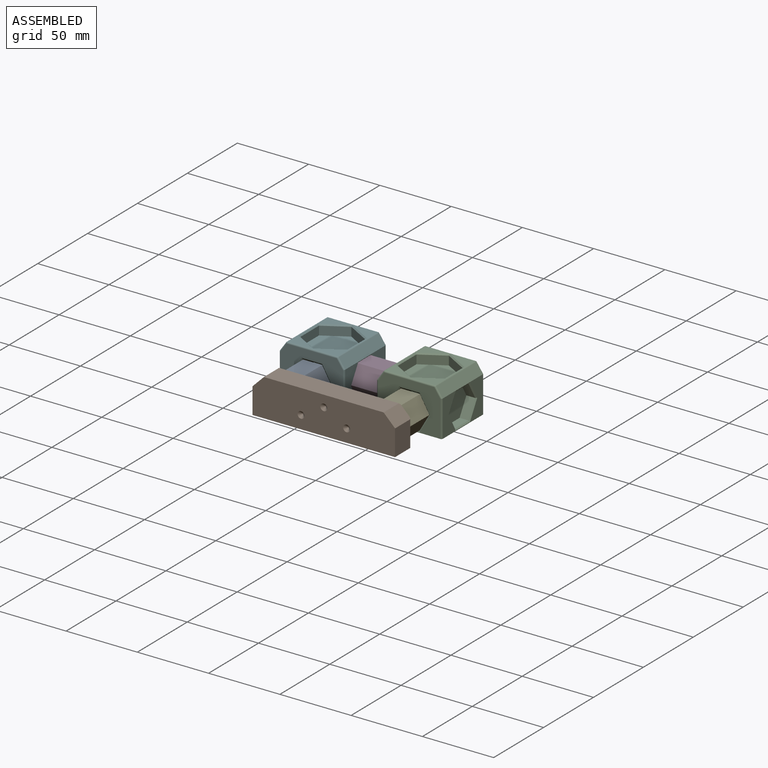
[diagram: assembled view]
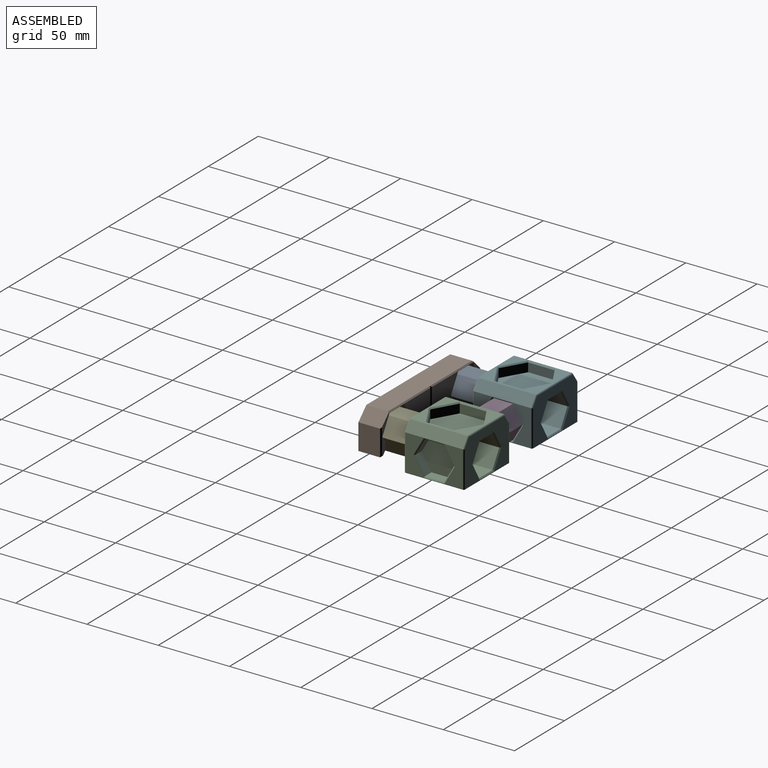
[diagram: assembled view, second angle]
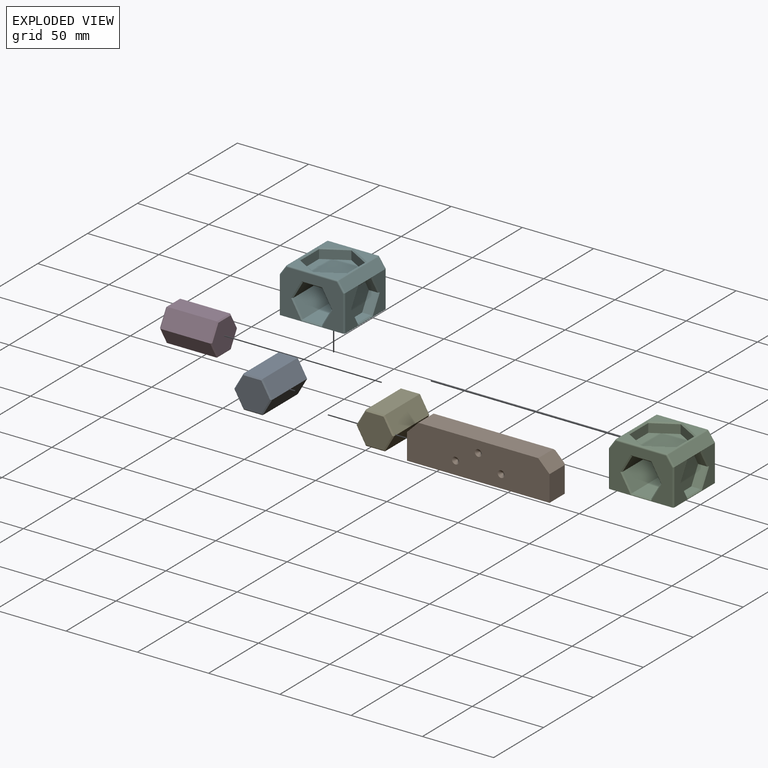
[diagram: exploded view]
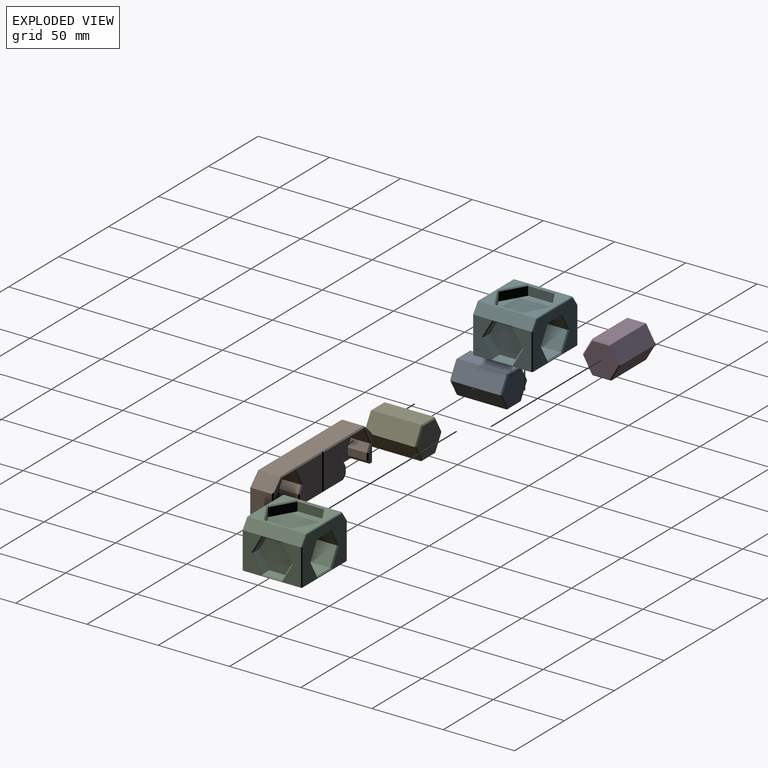
[diagram: exploded view, second angle]
ASSEMBLY  parts=6 mates=5
PART A: 20 faces, bbox 26.6x36.6x23 mm
  f0: plane 35x11.5mm, normal (0.87,0,0.5), area 464.8mm2, adj f1,f5,f13,f19
  f1: plane 35x11.5mm, normal (0.87,0,-0.5), area 464.8mm2, adj f0,f2,f11,f17
  f2: plane 35x13.28mm, normal (0,0,-1), area 464.8mm2, adj f1,f3,f9,f15
  f3: plane 35x11.5mm, normal (-0.87,0,-0.5), area 464.8mm2, adj f2,f4,f8,f14
  f4: plane 35x11.5mm, normal (-0.87,0,0.5), area 464.8mm2, adj f3,f5,f10,f16
  f5: plane 35x13.28mm, normal (0,0,1), area 464.8mm2, adj f0,f4,f12,f18
  f6: plane 24.71x21.4mm, normal (0,1,0), area 396.6mm2, adj f14,f15,f16,f17,f18,f19
  f7: plane 24.71x21.4mm, normal (0,-1,0), area 396.6mm2, adj f8,f9,f10,f11,f12,f13
  f8: plane 11.5x7.1mm, normal (-0.61,-0.71,-0.35), area 14.5mm2, adj f3,f7,f9,f10
  f9: plane 13.28x0.8mm, normal (0,-0.71,-0.71), area 14.5mm2, adj f2,f7,f8,f11
  f10: plane 11.5x7.1mm, normal (-0.61,-0.71,0.35), area 14.5mm2, adj f4,f7,f8,f12
  f11: plane 11.5x7.1mm, normal (0.61,-0.71,-0.35), area 14.5mm2, adj f1,f7,f9,f13
  f12: plane 13.28x0.8mm, normal (0,-0.71,0.71), area 14.5mm2, adj f5,f7,f10,f13
  f13: plane 11.5x7.1mm, normal (0.61,-0.71,0.35), area 14.5mm2, adj f0,f7,f11,f12
  f14: plane 11.5x7.1mm, normal (-0.61,0.71,-0.35), area 14.5mm2, adj f3,f6,f15,f16
  f15: plane 13.28x0.8mm, normal (0,0.71,-0.71), area 14.5mm2, adj f2,f6,f14,f17
  f16: plane 11.5x7.1mm, normal (-0.61,0.71,0.35), area 14.5mm2, adj f4,f6,f14,f18
  f17: plane 11.5x7.1mm, normal (0.61,0.71,-0.35), area 14.5mm2, adj f1,f6,f15,f19
  f18: plane 13.28x0.8mm, normal (0,0.71,0.71), area 14.5mm2, adj f5,f6,f16,f19
  f19: plane 11.5x7.1mm, normal (0.61,0.71,0.35), area 14.5mm2, adj f0,f6,f17,f18
PART B: 65 faces, bbox 100x16x26.2 mm
  f0: plane 100x26.2mm, normal (0,-1,0), area 2501.7mm2, adj f3,f4,f5,f32,f57,f58,f62,f63
  f1: plane 24.6x7.65mm, normal (0,1,0), area 61.1mm2, adj f16,f17,f18,f19,f20,f22,f25,f58
  f2: plane 26.31x24.6mm, normal (0,1,0), area 540.6mm2, adj f21,f24,f25,f26,f27,f28,f29
  f3: plane 84x15.2mm, normal (0,0,1), area 1276.8mm2, adj f0,f25,f52,f57,f58
  f4: plane 100x15.2mm, normal (0,0,-1), area 806.7mm2, adj f0,f5,f8,f9,f15,f19,f29,f32
  f5: plane 18.2x15.2mm, normal (-1,0,0), area 276.6mm2, adj f0,f4,f22,f58
  f6: plane 13.2x5.02mm, normal (-0.87,0,0.5), area 76.6mm2, adj f7,f14,f15,f24
  f7: plane 13.2x4.98mm, normal (-1,0,0), area 65.7mm2, adj f6,f8,f15,f26
  f8: plane 13.2x2.9mm, normal (-0.71,0,-0.71), area 54.1mm2, adj f4,f7,f15,f28
  f9: plane 13.2x2.9mm, normal (0.71,0,-0.71), area 54.1mm2, adj f4,f10,f15,f17
  f10: plane 13.2x4.98mm, normal (1,0,0), area 65.7mm2, adj f9,f11,f15,f16
  f11: plane 13.2x5.02mm, normal (0.87,0,0.5), area 76.6mm2, adj f10,f12,f15,f18
  f12: plane 13.2x11.7mm, normal (0.87,0,-0.5), area 178.3mm2, adj f11,f13,f15,f20
  f13: plane 13.51x13.2mm, normal (0,0,-1), area 178.3mm2, adj f12,f14,f15,f23
  f14: plane 13.2x11.7mm, normal (-0.87,0,-0.5), area 178.3mm2, adj f6,f13,f15,f21
  f15: plane 27.02x24.6mm, normal (0,1,0), area 533.8mm2, adj f4,f6,f7,f8,f9,f10,f11,f12
  f16: plane 4.98x0.8mm, normal (0.71,0.71,0), area 5.3mm2, adj f1,f10,f17,f18
  f17: plane 3.23x3.23mm, normal (0.5,0.71,-0.5), area 4.3mm2, adj f1,f9,f16,f19
  f18: plane 5.24x3.82mm, normal (0.61,0.71,0.35), area 6.7mm2, adj f1,f11,f16,f20
  f19: plane 2.16x0.8mm, normal (0,0.71,-0.71), area 1.8mm2, adj f1,f4,f17,f22
  f20: plane 12.5x7.68mm, normal (0.61,0.71,-0.35), area 15.8mm2, adj f1,f12,f18,f23
  f21: plane 12.5x7.68mm, normal (-0.61,0.71,-0.35), area 15.8mm2, adj f2,f14,f23,f24
  f22: plane 19x0.8mm, normal (-0.71,0.71,0), area 20.6mm2, adj f1,f5,f19,f58
  f23: plane 14.43x0.8mm, normal (0,0.71,-0.71), area 15.8mm2, adj f13,f20,f21,f25
  f24: plane 5.24x3.82mm, normal (-0.61,0.71,0.35), area 6.7mm2, adj f2,f6,f21,f26
  f25: plane 42.8x0.8mm, normal (0,0.71,0.71), area 47.5mm2, adj f1,f2,f3,f23,f27,f58
  f26: plane 4.98x0.8mm, normal (-0.71,0.71,0), area 5.3mm2, adj f2,f7,f24,f28
  f27: plane 26.2x0.8mm, normal (0.71,0.71,0), area 28.7mm2, adj f2,f25,f29,f54
  f28: plane 3.23x3.23mm, normal (-0.5,0.71,-0.5), area 4.3mm2, adj f2,f8,f26,f29
  f29: plane 20.82x0.8mm, normal (0,0.71,-0.71), area 22.9mm2, adj f2,f4,f27,f28
  f30: plane 24.6x7.65mm, normal (0,1,0), area 61.1mm2, adj f43,f44,f45,f46,f47,f49,f52,f57
  f31: plane 26.31x24.6mm, normal (0,1,0), area 540.6mm2, adj f48,f51,f52,f53,f54,f55,f56
  f32: plane 18.2x15.2mm, normal (1,0,0), area 276.6mm2, adj f0,f4,f49,f57
  f33: plane 13.2x5.02mm, normal (0.87,0,0.5), area 76.6mm2, adj f34,f41,f42,f51
  f34: plane 13.2x4.98mm, normal (1,0,0), area 65.7mm2, adj f33,f35,f42,f53
  f35: plane 13.2x2.9mm, normal (0.71,0,-0.71), area 54.1mm2, adj f4,f34,f42,f55
  f36: plane 13.2x2.9mm, normal (-0.71,0,-0.71), area 54.1mm2, adj f4,f37,f42,f44
  f37: plane 13.2x4.98mm, normal (-1,0,0), area 65.7mm2, adj f36,f38,f42,f43
  f38: plane 13.2x5.02mm, normal (-0.87,0,0.5), area 76.6mm2, adj f37,f39,f42,f45
  f39: plane 13.2x11.7mm, normal (-0.87,0,-0.5), area 178.3mm2, adj f38,f40,f42,f47
  f40: plane 13.51x13.2mm, normal (0,0,-1), area 178.3mm2, adj f39,f41,f42,f50
  f41: plane 13.2x11.7mm, normal (0.87,0,-0.5), area 178.3mm2, adj f33,f40,f42,f48
  f42: plane 27.02x24.6mm, normal (0,1,0), area 533.8mm2, adj f4,f33,f34,f35,f36,f37,f38,f39
  f43: plane 4.98x0.8mm, normal (-0.71,0.71,0), area 5.3mm2, adj f30,f37,f44,f45
  f44: plane 3.23x3.23mm, normal (-0.5,0.71,-0.5), area 4.3mm2, adj f30,f36,f43,f46
  f45: plane 5.24x3.82mm, normal (-0.61,0.71,0.35), area 6.7mm2, adj f30,f38,f43,f47
  f46: plane 2.16x0.8mm, normal (0,0.71,-0.71), area 1.8mm2, adj f4,f30,f44,f49
  f47: plane 12.5x7.68mm, normal (-0.61,0.71,-0.35), area 15.8mm2, adj f30,f39,f45,f50
  f48: plane 12.5x7.68mm, normal (0.61,0.71,-0.35), area 15.8mm2, adj f31,f41,f50,f51
  f49: plane 19x0.8mm, normal (0.71,0.71,0), area 20.6mm2, adj f30,f32,f46,f57
  f50: plane 14.43x0.8mm, normal (0,0.71,-0.71), area 15.8mm2, adj f40,f47,f48,f52
  f51: plane 5.24x3.82mm, normal (0.61,0.71,0.35), area 6.7mm2, adj f31,f33,f48,f53
  f52: plane 42.8x0.8mm, normal (0,0.71,0.71), area 47.5mm2, adj f3,f30,f31,f50,f54,f57
  f53: plane 4.98x0.8mm, normal (0.71,0.71,0), area 5.3mm2, adj f31,f34,f51,f55
  f54: plane 26.2x0.8mm, normal (-0.71,0.71,0), area 28.7mm2, adj f27,f31,f52,f56
  f55: plane 3.23x3.23mm, normal (0.5,0.71,-0.5), area 4.3mm2, adj f31,f35,f53,f56
  f56: plane 20.82x0.8mm, normal (0,0.71,-0.71), area 22.9mm2, adj f4,f31,f54,f55
  f57: plane 16x8mm, normal (0.71,0,0.71), area 180.1mm2, adj f0,f3,f30,f32,f49,f52
  f58: plane 16x8mm, normal (-0.71,0,0.71), area 180.1mm2, adj f0,f1,f3,f5,f22,f25
  f59: plane 0.8x0.8mm, normal (0,-1,0), area 0.5mm2, adj f64
  f60: plane 0.8x0.8mm, normal (0,-1,0), area 0.5mm2, adj f63
  f61: plane 0.8x0.8mm, normal (0,-1,0), area 0.5mm2, adj f62
  f62: cone r=0.4mm half-angle=45deg, axis (0,-1,0), area 24.9mm2, adj f0,f61
  f63: cone r=2.4mm half-angle=45deg, axis (0,-1,0), area 24.9mm2, adj f0,f60
  f64: cone r=0.4mm half-angle=45deg, axis (0,-1,0), area 24.9mm2, adj f0,f59
PART C: 75 faces, bbox 45.8x32.6x42 mm
  f0: plane 40x25.6mm, normal (-1,0,0), area 549.8mm2, adj f9,f10,f28,f29,f30,f31,f32,f33
  f1: plane 40x25.6mm, normal (1,0,0), area 482.7mm2, adj f8,f10,f41,f42,f43,f44,f45,f46
  f2: plane 40x34.96mm, normal (0,1,0), area 397.2mm2, adj f35,f36,f37,f38,f39,f40,f62,f69
  f3: plane 40.4x11.7mm, normal (-0.87,0.5,0), area 545.8mm2, adj f4,f11,f51,f54
  f4: plane 40.4x13.51mm, normal (0,1,0), area 545.8mm2, adj f3,f5,f49,f56
  f5: plane 40.4x11.7mm, normal (0.87,0.5,0), area 545.8mm2, adj f4,f6,f47,f58
  f6: plane 40.4x11.7mm, normal (0.87,-0.5,0), area 545.8mm2, adj f5,f7,f48,f57
  f7: plane 40.4x13.51mm, normal (0,-1,0), area 545.8mm2, adj f6,f11,f50,f55
  f8: plane 40x6.57mm, normal (0.82,0.57,0), area 320.8mm2, adj f1,f68,f71,f74
  f9: plane 40x6.57mm, normal (-0.82,0.57,0), area 320.8mm2, adj f0,f61,f62,f63
  f10: plane 45.79x42mm, normal (0,-1,0), area 1922.4mm2, adj f0,f1,f12,f13,f59,f60,f64,f67
  f11: plane 40.4x11.7mm, normal (-0.87,-0.5,0), area 545.8mm2, adj f3,f7,f52,f53
  f12: plane 43.79x31.6mm, normal (0,0,1), area 814.6mm2, adj f10,f53,f54,f55,f56,f57,f58,f59
  f13: plane 43.79x31.6mm, normal (0,0,-1), area 814.6mm2, adj f10,f47,f48,f49,f50,f51,f52,f60
  f14: plane 18.71x6.2mm, normal (1,0,0), area 116mm2, adj f15,f19,f20,f38
  f15: plane 16.2x9.35mm, normal (0.5,0,-0.87), area 116mm2, adj f14,f16,f20,f36
  f16: plane 16.2x9.35mm, normal (-0.5,0,-0.87), area 116mm2, adj f15,f17,f20,f35
  f17: plane 18.71x6.2mm, normal (-1,0,0), area 116mm2, adj f16,f18,f20,f37
  f18: plane 16.2x9.35mm, normal (-0.5,0,0.87), area 116mm2, adj f17,f19,f20,f39
  f19: plane 16.2x9.35mm, normal (0.5,0,0.87), area 116mm2, adj f14,f18,f20,f40
  f20: plane 37.41x32.4mm, normal (0,1,0), area 909.1mm2, adj f14,f15,f16,f17,f18,f19
  f21: plane 13.51x6.2mm, normal (0,-1,0), area 83.8mm2, adj f22,f26,f27,f43
  f22: plane 11.7x6.76mm, normal (0,-0.5,-0.87), area 83.8mm2, adj f21,f23,f27,f45
  f23: plane 11.7x6.76mm, normal (0,0.5,-0.87), area 83.8mm2, adj f22,f24,f27,f46
  f24: plane 13.51x6.2mm, normal (0,1,0), area 83.8mm2, adj f23,f25,f27,f44
  f25: plane 11.7x6.76mm, normal (0,0.5,0.87), area 83.8mm2, adj f24,f26,f27,f42
  f26: plane 11.7x6.76mm, normal (0,-0.5,0.87), area 83.8mm2, adj f21,f25,f27,f41
  f27: plane 27.02x23.4mm, normal (1,0,0), area 474.2mm2, adj f21,f22,f23,f24,f25,f26
  f28: plane 13.51x7mm, normal (0,1,0), area 94.6mm2, adj f0,f29,f33,f34
  f29: plane 11.7x7mm, normal (0,0.5,-0.87), area 94.6mm2, adj f0,f28,f30,f34
  f30: plane 11.7x7mm, normal (0,-0.5,-0.87), area 94.6mm2, adj f0,f29,f31,f34
  f31: plane 13.51x7mm, normal (0,-1,0), area 94.6mm2, adj f0,f30,f32,f34
  f32: plane 11.7x7mm, normal (0,-0.5,0.87), area 94.6mm2, adj f0,f31,f33,f34
  f33: plane 11.7x7mm, normal (0,0.5,0.87), area 94.6mm2, adj f0,f28,f32,f34
  f34: plane 27.02x23.4mm, normal (-1,0,0), area 474.2mm2, adj f28,f29,f30,f31,f32,f33
  f35: plane 17x10.28mm, normal (-0.35,0.71,-0.61), area 21.7mm2, adj f2,f16,f36,f37
  f36: plane 17x10.28mm, normal (0.35,0.71,-0.61), area 21.7mm2, adj f2,f15,f35,f38
  f37: plane 19.63x0.8mm, normal (-0.71,0.71,0), area 21.7mm2, adj f2,f17,f35,f39
  f38: plane 19.63x0.8mm, normal (0.71,0.71,0), area 21.7mm2, adj f2,f14,f36,f40
  f39: plane 17x10.28mm, normal (-0.35,0.71,0.61), area 21.7mm2, adj f2,f18,f37,f40
  f40: plane 17x10.28mm, normal (0.35,0.71,0.61), area 21.7mm2, adj f2,f19,f38,f39
  f41: plane 12.5x7.68mm, normal (0.71,-0.35,0.61), area 15.8mm2, adj f1,f26,f42,f43
  f42: plane 12.5x7.68mm, normal (0.71,0.35,0.61), area 15.8mm2, adj f1,f25,f41,f44
  f43: plane 14.43x0.8mm, normal (0.71,-0.71,0), area 15.8mm2, adj f1,f21,f41,f45
  f44: plane 14.43x0.8mm, normal (0.71,0.71,0), area 15.8mm2, adj f1,f24,f42,f46
  f45: plane 12.5x7.68mm, normal (0.71,-0.35,-0.61), area 15.8mm2, adj f1,f22,f43,f46
  f46: plane 12.5x7.68mm, normal (0.71,0.35,-0.61), area 15.8mm2, adj f1,f23,f44,f45
  f47: plane 12.5x7.68mm, normal (0.61,0.35,-0.71), area 15.8mm2, adj f5,f13,f48,f49
  f48: plane 12.5x7.68mm, normal (0.61,-0.35,-0.71), area 15.8mm2, adj f6,f13,f47,f50
  f49: plane 14.43x0.8mm, normal (0,0.71,-0.71), area 15.8mm2, adj f4,f13,f47,f51
  f50: plane 14.43x0.8mm, normal (0,-0.71,-0.71), area 15.8mm2, adj f7,f13,f48,f52
  f51: plane 12.5x7.68mm, normal (-0.61,0.35,-0.71), area 15.8mm2, adj f3,f13,f49,f52
  f52: plane 12.5x7.68mm, normal (-0.61,-0.35,-0.71), area 15.8mm2, adj f11,f13,f50,f51
  f53: plane 12.5x7.68mm, normal (-0.61,-0.35,0.71), area 15.8mm2, adj f11,f12,f54,f55
  f54: plane 12.5x7.68mm, normal (-0.61,0.35,0.71), area 15.8mm2, adj f3,f12,f53,f56
  f55: plane 14.43x0.8mm, normal (0,-0.71,0.71), area 15.8mm2, adj f7,f12,f53,f57
  f56: plane 14.43x0.8mm, normal (0,0.71,0.71), area 15.8mm2, adj f4,f12,f54,f58
  f57: plane 12.5x7.68mm, normal (0.61,-0.35,0.71), area 15.8mm2, adj f6,f12,f55,f58
  f58: plane 12.5x7.68mm, normal (0.61,0.35,0.71), area 15.8mm2, adj f5,f12,f56,f57
  f59: cylinder r=1mm len=25.6mm, axis (0,1,0), area 40mm2, adj f0,f10,f12,f61
  f60: cylinder r=1mm len=25.6mm, axis (0,-1,0), area 40mm2, adj f0,f10,f13,f63
  f61: cylinder r=1mm len=7.15mm, axis (0.57,0.82,0), area 12.4mm2, adj f9,f12,f59,f65
  f62: cylinder r=1mm len=40mm, axis (0,0,1), area 38.4mm2, adj f2,f9,f65,f66
  f63: cylinder r=1mm len=7.15mm, axis (-0.57,-0.82,0), area 12.4mm2, adj f9,f13,f60,f66
  f64: cylinder r=1mm len=25.6mm, axis (0,-1,0), area 40mm2, adj f1,f10,f12,f68
  f65: sphere r=1mm, area 1mm2, adj f61,f62,f69
  f66: sphere r=1mm, area 1mm2, adj f62,f63,f70
  f67: cylinder r=1mm len=25.6mm, axis (0,1,0), area 40mm2, adj f1,f10,f13,f71
  f68: cylinder r=1mm len=7.15mm, axis (0.57,-0.82,0), area 12.4mm2, adj f8,f12,f64,f72
  f69: cylinder r=1mm len=34.96mm, axis (1,0,0), area 54.9mm2, adj f2,f12,f65,f72
  f70: cylinder r=1mm len=34.96mm, axis (-1,0,0), area 54.9mm2, adj f2,f13,f66,f73
  f71: cylinder r=1mm len=7.15mm, axis (-0.57,0.82,0), area 12.4mm2, adj f8,f13,f67,f73
  f72: sphere r=1mm, area 1mm2, adj f68,f69,f74
  f73: sphere r=1mm, area 1mm2, adj f70,f71,f74
  f74: cylinder r=1mm len=40mm, axis (0,0,-1), area 38.4mm2, adj f2,f8,f72,f73
PART D: same geometry as A
PART E: same geometry as A
PART F: same geometry as C
PLACE A t=(43.14,4.69,-16.5)mm
PLACE B t=(43.14,4.69,-15.27)mm
PLACE C rot(axis=(1,0,0),90deg) t=(207.2,4.6,-4.6)mm
PLACE D rot(axis=(0.71,-0.71,0),180deg) t=(135.21,100.27,9.5)mm
PLACE E t=(111.8,4.69,-16.5)mm
PLACE F rot(axis=(1,0,0),90deg) t=(138.81,4.6,-4.6)mm
MATE fastened D.f7 <-> C.f34  axis (1,0,0) through (191.3,4.6,-3.4)mm
MATE revolute E.f7 <-> B.f42  axis (0,-1,0) through (207.47,-51.4,-3.6)mm
MATE revolute A.f2 <-> F.f4  axis (0,0,-1) through (138.81,-15.6,-15.1)mm
MATE fastened A.f7 <-> B.f15  axis (0,-1,0) through (138.81,-51.4,-3.6)mm
MATE fastened D.f6 <-> F.f27  axis (-1,0,0) through (154.7,4.6,-3.4)mm
